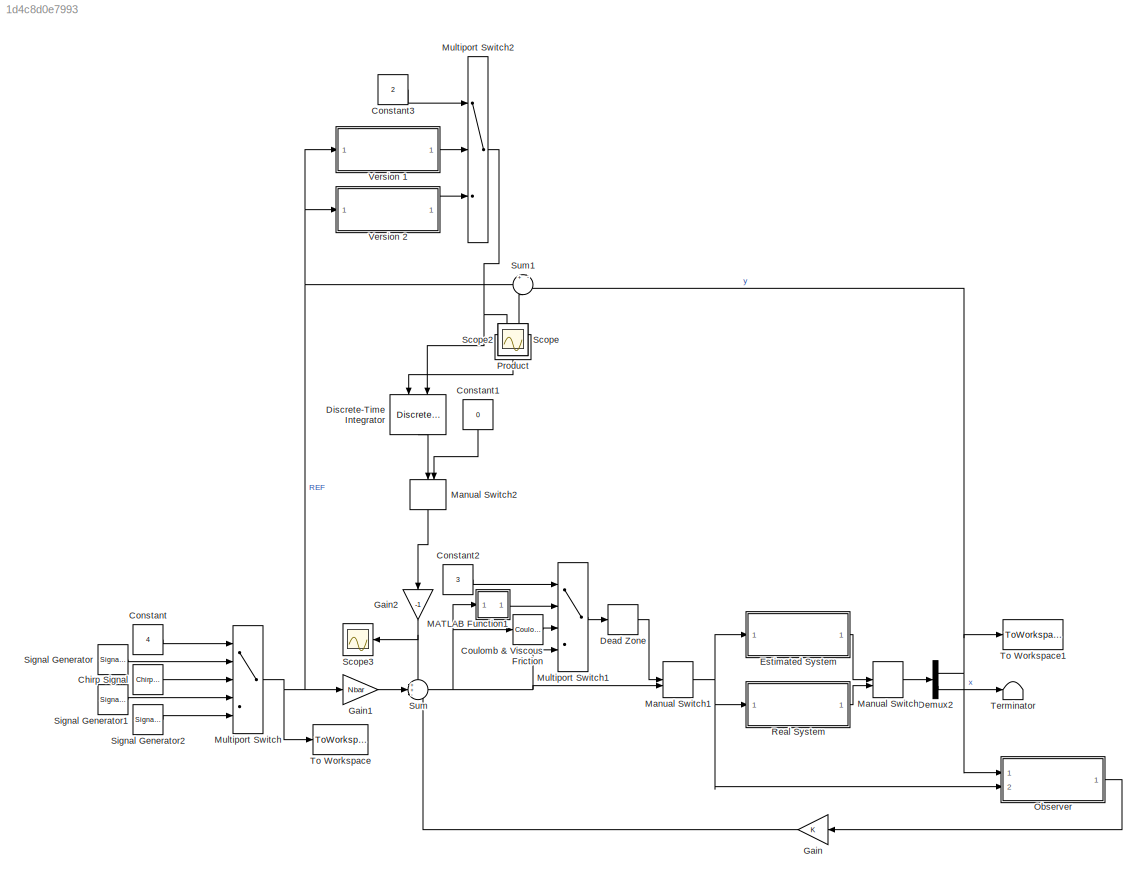
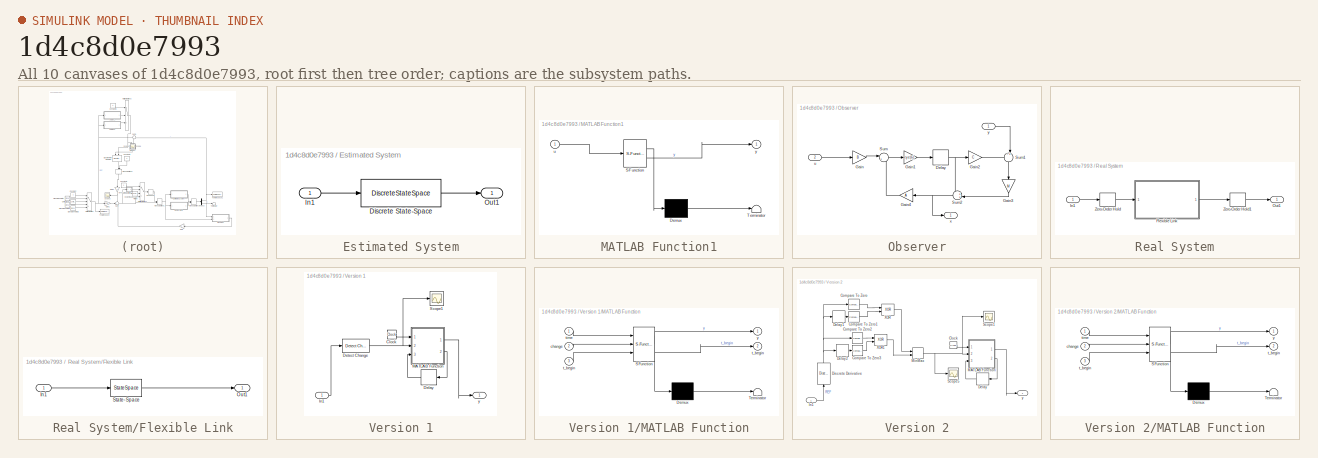
[diagram: thumbnail index - all 10 canvases of the model, root first then tree order]
MODEL slx_1d4c8d0e7993
KIND model
CONFIG AbsTol = auto
CONFIG EnableMultiTasking = off
CONFIG FixedStep = auto
CONFIG MaxStep = auto
CONFIG MinStep = auto
CONFIG RelTol = 1e-3
CONFIG SampleTimeConstraint = Unconstrained
CONFIG SolverName = VariableStepAuto
CONFIG StartTime = 0.0
CONFIG StopTime = 200
BLOCK [Reference] Chirp Signal  REF=simulink/Sources/Chirp Signal
  Ports = [0, 1]
  SourceBlock = simulink/Sources/Chirp Signal
  SourceProductBaseCode = SL
  SourceType = chirp
BLOCK [Constant] Constant
  Value = 4
BLOCK [Constant] Constant1
  NameLocation = left
  Value = 0
BLOCK [Constant] Constant2
  Value = 3
BLOCK [Constant] Constant3
  Value = 2
BLOCK [Reference] Coulomb & Viscous Friction  REF=simulink/Discontinuities/Coulomb &
Viscous Friction
  Ports = [1, 1]
  SourceBlock = simulink/Discontinuities/Coulomb &\nViscous Friction
  SourceProductBaseCode = SL
  SourceType = Coulombic and Viscous Friction
BLOCK [DeadZone] Dead Zone
  LowerValue = -0.1
  UpperValue = 0.1
BLOCK [Demux] Demux2
  Outputs = [1,6]
  Ports = [1, 2]
BLOCK [DiscreteIntegrator] Discrete-Time Integrator
  ExternalReset = either
  ICPrevOutput = DiscIntNeverNeededParam
  ICPrevScaledInput = DiscIntNeverNeededParam
  InitialConditionSetting = Auto
  IntegratorMethod = Integration: Backward Euler
  LowerSaturationLimit = -10
  NameLocation = left
  Ports = [2, 1]
  SampleTime = -1
  UpperSaturationLimit = 10
  gainval = 0.011
BLOCK [SubSystem] Estimated System
  Ports = [1, 1]
  RequestExecContextInheritance = off
BLOCK [DiscreteStateSpace] Estimated System/Discrete State-Space
  A = A
  B = B
  C = [C ; eye(6)]
  D = [D; 0;0;0;0;0;0]
  SampleTime = 0.01
BLOCK [Inport] Estimated System/In1
BLOCK [Outport] Estimated System/Out1
BLOCK [Gain] Gain
  Gain = K
  Multiplication = Matrix(K*u)
BLOCK [Gain] Gain1
  Gain = Nbar
BLOCK [Gain] Gain2
  Gain = -1
  NameLocation = left
BLOCK [SubSystem] MATLAB Function1
  ErrorFcn = Stateflow.Translate.translate
  PermitHierarchicalResolution = ExplicitOnly
  Ports = [1, 1]
  RequestExecContextInheritance = off
  SFBlockType = MATLAB Function
  TreatAsAtomicUnit = on
BLOCK [Demux] MATLAB Function1/ Demux 
  Outputs = 1
  Ports = [1, 1]
BLOCK [S-Function] MATLAB Function1/ SFunction 
  EnableBusSupport = on
  FunctionName = sf_sfun
  PortCounts = [1 2]
  Ports = [1, 2]
  SFcnIsStateOwnerBlock = off
  SFunctionDeploymentMode = off
  Tag = Stateflow S-Function 1
BLOCK [Terminator] MATLAB Function1/ Terminator 
BLOCK [Inport] MATLAB Function1/u
BLOCK [Outport] MATLAB Function1/y
BLOCK [ManualSwitch] Manual Switch
  CurrentSetting = 0
BLOCK [ManualSwitch] Manual Switch1
BLOCK [ManualSwitch] Manual Switch2
  NameLocation = left
BLOCK [MultiPortSwitch] Multiport Switch
  InputSameDT = off
  Inputs = 4
  Ports = [5, 1]
  SaturateOnIntegerOverflow = off
BLOCK [MultiPortSwitch] Multiport Switch1
  InputSameDT = off
  Ports = [4, 1]
  SaturateOnIntegerOverflow = off
BLOCK [MultiPortSwitch] Multiport Switch2
  InputSameDT = off
  Inputs = 2
  Ports = [3, 1]
  SaturateOnIntegerOverflow = off
BLOCK [SubSystem] Observer
  Ports = [2, 1]
  RequestExecContextInheritance = off
BLOCK [Delay] Observer/Delay
  DelayLength = 1
  InputPortMap = u0
  Ports = [1, 1]
  SampleTime = Ts
BLOCK [Gain] Observer/Gain
  Gain = B
  Multiplication = Matrix(K*u)
BLOCK [Gain] Observer/Gain1
  Gain = eye(6)
  Multiplication = Matrix(K*u)
BLOCK [Gain] Observer/Gain2
  Gain = C
  Multiplication = Matrix(K*u)
BLOCK [Gain] Observer/Gain3
  Gain = M
  Multiplication = Matrix(K*u)
  NameLocation = left
BLOCK [Gain] Observer/Gain4
  Gain = A
  Multiplication = Matrix(K*u)
BLOCK [Sum] Observer/Sum
  Inputs = |++
  Ports = [2, 1]
BLOCK [Sum] Observer/Sum1
  Inputs = -+|
  NameLocation = left
  Ports = [2, 1]
BLOCK [Sum] Observer/Sum2
  Inputs = ++|
  Ports = [2, 1]
BLOCK [Inport] Observer/u
  Port = 2
BLOCK [Outport] Observer/x
BLOCK [Inport] Observer/y
BLOCK [Product] Product
  NameLocation = left
  Ports = [2, 1]
BLOCK [SubSystem] Real System
  Ports = [1, 1]
  RequestExecContextInheritance = off
BLOCK [SubSystem] Real System/Flexible Link
  Ports = [1, 1]
  RequestExecContextInheritance = off
BLOCK [Inport] Real System/Flexible Link/In1
BLOCK [Outport] Real System/Flexible Link/Out1
BLOCK [StateSpace] Real System/Flexible Link/State-Space
  A = Atrue
  B = Btrue
  C = Ctrue
  D = Dtrue
  InitialCondition = 0
  Ports = [1, 1]
BLOCK [Inport] Real System/In1
BLOCK [Outport] Real System/Out1
BLOCK [ZeroOrderHold] Real System/Zero-Order Hold
  SampleTime = Ts
BLOCK [ZeroOrderHold] Real System/Zero-Order Hold1
  SampleTime = Ts
BLOCK [Scope] Scope
  Floating = off
  IOType = viewer
  NumInputPorts = 1
  Ports = []
  ScopeSpecificationString = Simulink.scopes.TimeScopeBlockCfg('CurrentConfiguration', extmgr.ConfigurationSet(extmgr.Configuration('Core','General UI',true),extmgr.Configuration('Core','Source UI',true),extmgr.Configuration('Sources','WiredSimulink',true),extmgr.Configuration('Visuals','Time Domain',true,'SerializedDisplays',{struct('MinYLimReal','-0.99809','MaxYLimReal','0.99807','YLabelReal','','MinYLimMag','0.00000','MaxY...<+1384ch>
BLOCK [Scope] Scope2
  Floating = off
  IOType = viewer
  NumInputPorts = 1
  Ports = []
  ScopeSpecificationString = Simulink.scopes.TimeScopeBlockCfg('CurrentConfiguration', extmgr.ConfigurationSet(extmgr.Configuration('Core','General UI',true),extmgr.Configuration('Core','Source UI',true),extmgr.Configuration('Sources','WiredSimulink',true,'DataLoggingVariableName','ScopeData2'),extmgr.Configuration('Visuals','Time Domain',true,'SerializedDisplays',{struct('MinYLimReal','-25.00212','MaxYLimReal','225.00024','Y...<+1450ch>
BLOCK [Scope] Scope3
  Floating = off
  NumInputPorts = 1
  Ports = [1]
  ScopeSpecificationString = Simulink.scopes.TimeScopeBlockCfg('CurrentConfiguration', extmgr.ConfigurationSet(extmgr.Configuration('Core','General UI',true),extmgr.Configuration('Core','Source UI',true),extmgr.Configuration('Sources','WiredSimulink',true,'DataLoggingVariableName','ScopeData3'),extmgr.Configuration('Visuals','Time Domain',true,'SerializedDisplays',{struct('MinYLimReal','-0.30072','MaxYLimReal','0.30077','YLab...<+1440ch>
BLOCK [SignalGenerator] Signal Generator
  Amplitude = 4
  Frequency = 0.1
  Ports = [0, 1]
  Units = rad/sec
  WaveForm = square
BLOCK [SignalGenerator] Signal Generator1
  Amplitude = 4
  Frequency = 0.11
  Ports = [0, 1]
  Units = rad/sec
  WaveForm = sawtooth
BLOCK [SignalGenerator] Signal Generator2
  Amplitude = 4
  Frequency = 0.15
  Ports = [0, 1]
  Units = rad/sec
BLOCK [Sum] Sum
  Inputs = ++-
  Ports = [3, 1]
BLOCK [Sum] Sum1
  Inputs = +|-
  NameLocation = left
  Ports = [2, 1]
BLOCK [Terminator] Terminator
BLOCK [ToWorkspace] To Workspace
  FixptAsFi = on
  MaxDataPoints = inf
  Ports = [1]
  SampleTime = -1
  SaveFormat = Timeseries
  VariableName = ref3
BLOCK [ToWorkspace] To Workspace1
  FixptAsFi = on
  MaxDataPoints = inf
  Ports = [1]
  SampleTime = -1
  SaveFormat = Timeseries
  VariableName = y3
BLOCK [SubSystem] Version 1
  Ports = [1, 1]
  RequestExecContextInheritance = off
BLOCK [Clock] Version 1/Clock
BLOCK [Delay] Version 1/Delay
  DelayLength = 1
  InputPortMap = u0
  Ports = [1, 1]
BLOCK [Reference] Version 1/Detect Change  REF=simulink/Logic and Bit
Operations/Detect
Change
  Ports = [1, 1]
  SourceBlock = simulink/Logic and Bit\nOperations/Detect\nChange
  SourceProductBaseCode = SL
  SourceType = Detect Change
BLOCK [Inport] Version 1/In1
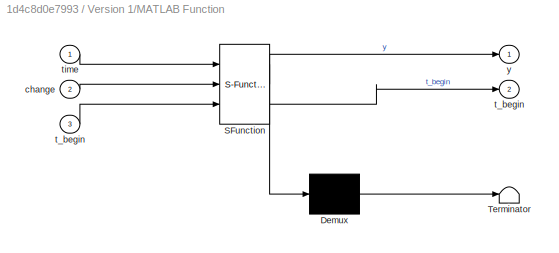
BLOCK [SubSystem] Version 1/MATLAB Function
  ErrorFcn = Stateflow.Translate.translate
  PermitHierarchicalResolution = ExplicitOnly
  Ports = [3, 2]
  RequestExecContextInheritance = off
  SFBlockType = MATLAB Function
  TreatAsAtomicUnit = on
BLOCK [Demux] Version 1/MATLAB Function/ Demux 
  Outputs = 1
  Ports = [1, 1]
BLOCK [S-Function] Version 1/MATLAB Function/ SFunction 
  EnableBusSupport = on
  FunctionName = sf_sfun
  PortCounts = [3 3]
  Ports = [3, 3]
  SFcnIsStateOwnerBlock = off
  SFunctionDeploymentMode = off
  Tag = Stateflow S-Function 2
BLOCK [Terminator] Version 1/MATLAB Function/ Terminator 
BLOCK [Inport] Version 1/MATLAB Function/change
  Port = 2
BLOCK [Outport] Version 1/MATLAB Function/t_begin
  Port = 2
BLOCK [Inport] Version 1/MATLAB Function/t_begin 
  Port = 3
BLOCK [Inport] Version 1/MATLAB Function/time
BLOCK [Outport] Version 1/MATLAB Function/y
BLOCK [Scope] Version 1/Scope1
  Floating = off
  NumInputPorts = 1
  Ports = [1]
  ScopeSpecificationString = Simulink.scopes.TimeScopeBlockCfg('CurrentConfiguration', extmgr.ConfigurationSet(extmgr.Configuration('Core','General UI',true),extmgr.Configuration('Core','Source UI',true),extmgr.Configuration('Sources','WiredSimulink',true,'DataLoggingVariableName','ScopeData1'),extmgr.Configuration('Visuals','Time Domain',true,'SerializedDisplays',{struct('MinYLimReal','-0.125','MaxYLimReal','1.125','YLabelRe...<+1382ch>
BLOCK [Outport] Version 1/y
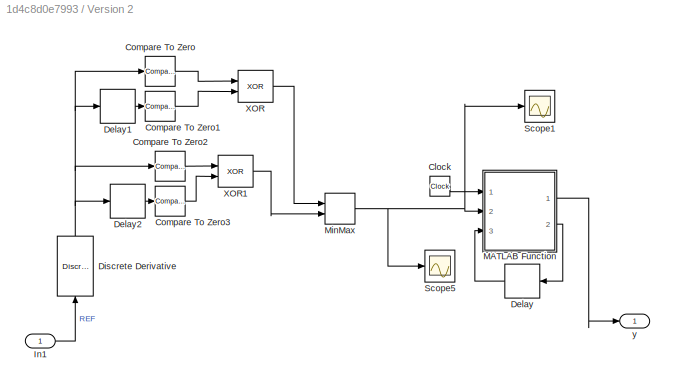
BLOCK [SubSystem] Version 2
  Ports = [1, 1]
  RequestExecContextInheritance = off
BLOCK [Clock] Version 2/Clock
BLOCK [Reference] Version 2/Compare To Zero  REF=simulink/Logic and Bit
Operations/Compare
To Zero
  Ports = [1, 1]
  SourceBlock = simulink/Logic and Bit\nOperations/Compare\nTo Zero
  SourceProductBaseCode = SL
  SourceType = Compare To Zero
BLOCK [Reference] Version 2/Compare To Zero1  REF=simulink/Logic and Bit
Operations/Compare
To Zero
  Ports = [1, 1]
  SourceBlock = simulink/Logic and Bit\nOperations/Compare\nTo Zero
  SourceProductBaseCode = SL
  SourceType = Compare To Zero
BLOCK [Reference] Version 2/Compare To Zero2  REF=simulink/Logic and Bit
Operations/Compare
To Zero
  Ports = [1, 1]
  SourceBlock = simulink/Logic and Bit\nOperations/Compare\nTo Zero
  SourceProductBaseCode = SL
  SourceType = Compare To Zero
BLOCK [Reference] Version 2/Compare To Zero3  REF=simulink/Logic and Bit
Operations/Compare
To Zero
  Ports = [1, 1]
  SourceBlock = simulink/Logic and Bit\nOperations/Compare\nTo Zero
  SourceProductBaseCode = SL
  SourceType = Compare To Zero
BLOCK [Delay] Version 2/Delay
  DelayLength = 1
  InputPortMap = u0
  Ports = [1, 1]
BLOCK [Delay] Version 2/Delay1
  DelayLength = 1
  InputPortMap = u0
  Ports = [1, 1]
BLOCK [Delay] Version 2/Delay2
  DelayLength = 1
  InputPortMap = u0
  Ports = [1, 1]
BLOCK [Reference] Version 2/Discrete Derivative  REF=simulink/Discrete/Discrete Derivative
  NameLocation = right
  Ports = [1, 1]
  SourceBlock = simulink/Discrete/Discrete Derivative
  SourceProductBaseCode = SL
  SourceType = Discrete Derivative
BLOCK [Inport] Version 2/In1
BLOCK [SubSystem] Version 2/MATLAB Function
  ErrorFcn = Stateflow.Translate.translate
  PermitHierarchicalResolution = ExplicitOnly
  Ports = [3, 2]
  RequestExecContextInheritance = off
  SFBlockType = MATLAB Function
  TreatAsAtomicUnit = on
BLOCK [Demux] Version 2/MATLAB Function/ Demux 
  Outputs = 1
  Ports = [1, 1]
BLOCK [S-Function] Version 2/MATLAB Function/ SFunction 
  EnableBusSupport = on
  FunctionName = sf_sfun
  PortCounts = [3 3]
  Ports = [3, 3]
  SFcnIsStateOwnerBlock = off
  SFunctionDeploymentMode = off
  Tag = Stateflow S-Function 3
BLOCK [Terminator] Version 2/MATLAB Function/ Terminator 
BLOCK [Inport] Version 2/MATLAB Function/change
  Port = 2
BLOCK [Outport] Version 2/MATLAB Function/t_begin
  Port = 2
BLOCK [Inport] Version 2/MATLAB Function/t_begin 
  Port = 3
BLOCK [Inport] Version 2/MATLAB Function/time
BLOCK [Outport] Version 2/MATLAB Function/y
BLOCK [MinMax] Version 2/MinMax
  Function = max
  Inputs = 2
  Ports = [2, 1]
BLOCK [Scope] Version 2/Scope1
  Floating = off
  NumInputPorts = 1
  Ports = [1]
  ScopeSpecificationString = Simulink.scopes.TimeScopeBlockCfg('CurrentConfiguration', extmgr.ConfigurationSet(extmgr.Configuration('Core','General UI',true),extmgr.Configuration('Core','Source UI',true),extmgr.Configuration('Sources','WiredSimulink',true,'DataLoggingVariableName','ScopeData4'),extmgr.Configuration('Visuals','Time Domain',true,'SerializedDisplays',{struct('MinYLimReal','-0.125','MaxYLimReal','1.125','YLabelRe...<+1382ch>
BLOCK [Scope] Version 2/Scope5
  Floating = off
  NumInputPorts = 1
  Ports = [1]
  ScopeSpecificationString = Simulink.scopes.TimeScopeBlockCfg('CurrentConfiguration', extmgr.ConfigurationSet(extmgr.Configuration('Core','General UI',true),extmgr.Configuration('Core','Source UI',true),extmgr.Configuration('Sources','WiredSimulink',true,'DataLoggingVariableName','ScopeData5'),extmgr.Configuration('Visuals','Time Domain',true,'SerializedDisplays',{struct('MinYLimReal','-0.125','MaxYLimReal','1.125','YLabelRe...<+1409ch>
BLOCK [Logic] Version 2/XOR
  AllPortsSameDT = off
  IconShape = distinctive
  Operator = XOR
  OutDataTypeStr = boolean
  Ports = [2, 1]
BLOCK [Logic] Version 2/XOR1
  AllPortsSameDT = off
  IconShape = distinctive
  Operator = XOR
  OutDataTypeStr = boolean
  Ports = [2, 1]
BLOCK [Outport] Version 2/y
LINE Chirp Signal:1 -> Multiport Switch:3
LINE Constant1:1 -> Manual Switch2:2
LINE Constant2:1 -> Multiport Switch1:1
LINE Constant3:1 -> Multiport Switch2:1
LINE Constant:1 -> Multiport Switch:1
LINE Coulomb & Viscous Friction:1 -> Multiport Switch1:3
LINE Dead Zone:1 -> Manual Switch1:1
NET Demux2:1 -> Observer:1, Sum1:2, To Workspace1:1
LINE Demux2:2 -> Terminator:1
LINE Discrete-Time Integrator:1 -> Manual Switch2:1
LINE Estimated System/Discrete State-Space:1 -> Estimated System/Out1:1
LINE Estimated System/In1:1 -> Estimated System/Discrete State-Space:1
LINE Estimated System:1 -> Manual Switch:1
LINE Gain1:1 -> Sum:2
NET Gain2:1 -> Scope3:1, Sum:1
LINE Gain:1 -> Sum:3
LINE MATLAB Function1:1 -> Multiport Switch1:2
NET Manual Switch1:1 -> Estimated System:1, Observer:2, Real System:1
LINE Manual Switch2:1 -> Gain2:1
LINE Manual Switch:1 -> Demux2:1
LINE Multiport Switch1:1 -> Dead Zone:1
NET Multiport Switch2:1 -> Discrete-Time Integrator:2, Product:1
NET Multiport Switch:1 -> Gain1:1, Sum1:1, To Workspace:1, Version 1:1, Version 2:1
NET Observer/Delay:1 -> Observer/Gain2:1, Observer/Sum2:1
LINE Observer/Gain1:1 -> Observer/Delay:1
LINE Observer/Gain2:1 -> Observer/Sum1:1
LINE Observer/Gain3:1 -> Observer/Sum2:2
LINE Observer/Gain4:1 -> Observer/Sum:2
LINE Observer/Gain:1 -> Observer/Sum:1
LINE Observer/Sum1:1 -> Observer/Gain3:1
NET Observer/Sum2:1 -> Observer/Gain4:1, Observer/x:1
LINE Observer/Sum:1 -> Observer/Gain1:1
LINE Observer/u:1 -> Observer/Gain:1
LINE Observer/y:1 -> Observer/Sum1:2
LINE Observer:1 -> Gain:1
LINE Product:1 -> Discrete-Time Integrator:1
LINE Real System/Flexible Link/In1:1 -> Real System/Flexible Link/State-Space:1
LINE Real System/Flexible Link/State-Space:1 -> Real System/Flexible Link/Out1:1
LINE Real System/Flexible Link:1 -> Real System/Zero-Order Hold1:1
LINE Real System/In1:1 -> Real System/Zero-Order Hold:1
LINE Real System/Zero-Order Hold1:1 -> Real System/Out1:1
LINE Real System/Zero-Order Hold:1 -> Real System/Flexible Link:1
LINE Real System:1 -> Manual Switch:2
LINE Signal Generator1:1 -> Multiport Switch:4
LINE Signal Generator2:1 -> Multiport Switch:5
LINE Signal Generator:1 -> Multiport Switch:2
LINE Sum1:1 -> Product:2
NET Sum:1 -> Coulomb & Viscous Friction:1, MATLAB Function1:1, Manual Switch1:2, Multiport Switch1:4
LINE Version 1/Clock:1 -> Version 1/MATLAB Function:1
LINE Version 1/Delay:1 -> Version 1/MATLAB Function:3
NET Version 1/Detect Change:1 -> Version 1/MATLAB Function:2, Version 1/Scope1:1
LINE Version 1/In1:1 -> Version 1/Detect Change:1
LINE Version 1/MATLAB Function:1 -> Version 1/y:1
LINE Version 1/MATLAB Function:2 -> Version 1/Delay:1
LINE Version 1:1 -> Multiport Switch2:2
LINE Version 2/Clock:1 -> Version 2/MATLAB Function:1
LINE Version 2/Compare To Zero1:1 -> Version 2/XOR:2
LINE Version 2/Compare To Zero2:1 -> Version 2/XOR1:1
LINE Version 2/Compare To Zero3:1 -> Version 2/XOR1:2
LINE Version 2/Compare To Zero:1 -> Version 2/XOR:1
LINE Version 2/Delay1:1 -> Version 2/Compare To Zero1:1
LINE Version 2/Delay2:1 -> Version 2/Compare To Zero3:1
LINE Version 2/Delay:1 -> Version 2/MATLAB Function:3
NET Version 2/Discrete Derivative:1 -> Version 2/Compare To Zero2:1, Version 2/Compare To Zero:1, Version 2/Delay1:1, Version 2/Delay2:1
LINE Version 2/In1:1 -> Version 2/Discrete Derivative:1
LINE Version 2/MATLAB Function:1 -> Version 2/y:1
LINE Version 2/MATLAB Function:2 -> Version 2/Delay:1
NET Version 2/MinMax:1 -> Version 2/MATLAB Function:2, Version 2/Scope1:1, Version 2/Scope5:1
LINE Version 2/XOR1:1 -> Version 2/MinMax:2
LINE Version 2/XOR:1 -> Version 2/MinMax:1
LINE Version 2:1 -> Multiport Switch2:3
note: NET lines group one-source signal fan-out (src -> all destinations, sorted); 1:1 wires keep LINE
CHART MATLAB Function1 states=1 transitions=1
  STATE_LABEL 'eML_blk_kernel()'
  STATE_LABEL 'SCRIPT:\nfunction y = fcn(u)\n    a=0.01;\n    y=(exp(u/a)/(exp(u/a) + exp(-u/a)))*(u + 0.1) + ...\n        (exp(-u/a)/(exp(u/a) + exp(-u/a)))*(u - 0.1);\nend\n'
CHART Version 1/MATLAB Function states=1 transitions=1
  STATE_LABEL 'eML_blk_kernel()'
  STATE_LABEL 'SCRIPT:\nfunction [y,t_begin] = fcn(time,change,t_begin)\ndelta_t=5;\nif time==0\n    t_begin=time;\nend\n    if change==1\n        t_begin=time;\n    end\n        \n    if (time - t_begin)>delta_t\n        y=1;\n    else\n        y=0;\n    end\n        \nend\n'
CHART Version 2/MATLAB Function states=1 transitions=1
  STATE_LABEL 'eML_blk_kernel()'
  STATE_LABEL 'SCRIPT:\nfunction [y,t_begin] = fcn(time,change,t_begin)\ndelta_t=7;\nif time==0\n    t_begin=time;\nend\n    if change==1\n        t_begin=time;\n    end\n        \n    if (time - t_begin)>delta_t\n        y=1;\n    else\n        y=0;\n    end\n        \nend\n'
CHART  states=0 transitions=0
CHART  states=0 transitions=0
CHART  states=0 transitions=0
